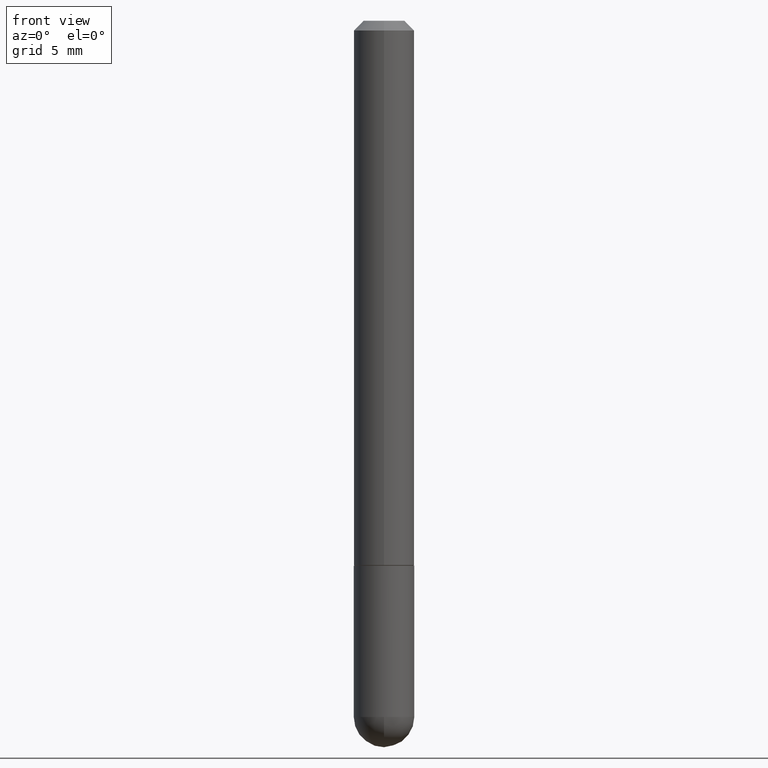
[diagram: clean part render]
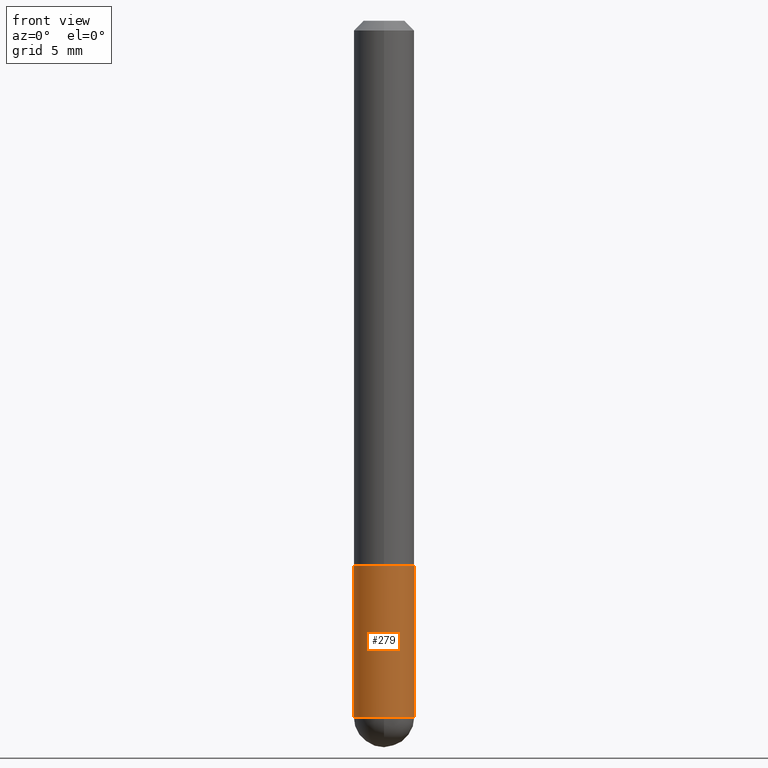
[diagram: same view with one face highlighted and labeled with its STEP entity id]
A machine part, front view. The second image highlights one B-rep face of the part: STEP entity #279.
In plain terms, the highlighted cylindrical surface (edge-blend (fillet) strip) has radius 1.5875 mm, axis along (-0, 0, 1).
Its self-contained STEP definition (entity closure, byte-faithful):
#8 = FACE_OUTER_BOUND ( 'NONE', #245, .T. ) ;
#11 = CARTESIAN_POINT ( 'NONE',  ( 2.751152406958278111E-29, -3.927916506198538435E-15, -1.124999999999999778 ) ) ;
#12 = VERTEX_POINT ( 'NONE', #412 ) ;
#21 = DIRECTION ( 'NONE',  ( -2.445468806185136597E-29, 3.491481338843145583E-15, 1.000000000000000000 ) ) ;
#24 = ORIENTED_EDGE ( 'NONE', *, *, #388, .T. ) ;
#43 = ORIENTED_EDGE ( 'NONE', *, *, #328, .T. ) ;
#56 = CIRCLE ( 'NONE', #317, 0.06249999999999995143 ) ;
#75 = LINE ( 'NONE', #172, #369 ) ;
#99 = CARTESIAN_POINT ( 'NONE',  ( 0.06250000000000001388, -4.364351673553930105E-15, -1.124999999999999778 ) ) ;
#104 = DIRECTION ( 'NONE',  ( 1.000000000000000000, -6.982962677686267499E-15, 4.876176775795936353E-29 ) ) ;
#109 = DIRECTION ( 'NONE',  ( 1.000000000000000000, -6.982962677686268288E-15, 0.000000000000000000 ) ) ;
#137 = DIRECTION ( 'NONE',  ( -2.445468806185136597E-29, 3.491481338843145583E-15, 1.000000000000000000 ) ) ;
#141 = EDGE_CURVE ( 'NONE', #202, #300, #257, .T. ) ;
#160 = CIRCLE ( 'NONE', #256, 0.06249999999999995143 ) ;
#161 = DIRECTION ( 'NONE',  ( -2.445468806185136877E-29, 3.491481338843145188E-15, 1.000000000000000000 ) ) ;
#162 = CARTESIAN_POINT ( 'NONE',  ( -0.06249999999999995143, -4.029371255542718167E-15, -1.437500000000000222 ) ) ;
#172 = CARTESIAN_POINT ( 'NONE',  ( 0.06249999999999997918, -4.364351673553915708E-16, 3.047610484872459170E-30 ) ) ;
#175 = ORIENTED_EDGE ( 'NONE', *, *, #141, .F. ) ;
#195 = CYLINDRICAL_SURFACE ( 'NONE', #290, 0.06249999999999997918 ) ;
#196 = VERTEX_POINT ( 'NONE', #99 ) ;
#202 = VERTEX_POINT ( 'NONE', #162 ) ;
#214 = VECTOR ( 'NONE', #161, 39.37007874015748143 ) ;
#220 = ORIENTED_EDGE ( 'NONE', *, *, #351, .F. ) ;
#243 = DIRECTION ( 'NONE',  ( 1.000000000000000000, -6.982962677686269077E-15, 0.000000000000000000 ) ) ;
#245 = EDGE_LOOP ( 'NONE', ( #175, #43, #24, #403, #220 ) ) ;
#256 = AXIS2_PLACEMENT_3D ( 'NONE', #326, #21, #358 ) ;
#257 = LINE ( 'NONE', #288, #214 ) ;
#262 = DIRECTION ( 'NONE',  ( -2.445468806185136877E-29, 3.491481338843145188E-15, 1.000000000000000000 ) ) ;
#263 = VERTEX_POINT ( 'NONE', #318 ) ;
#279 = ADVANCED_FACE ( 'NONE', ( #8 ), #195, .T. ) ;
#286 = AXIS2_PLACEMENT_3D ( 'NONE', #11, #393, #243 ) ;
#288 = CARTESIAN_POINT ( 'NONE',  ( -0.06249999999999997918, 4.440892098500624683E-16, -3.074334431409315413E-30 ) ) ;
#290 = AXIS2_PLACEMENT_3D ( 'NONE', #385, #137, #104 ) ;
#300 = VERTEX_POINT ( 'NONE', #396 ) ;
#315 = EDGE_CURVE ( 'NONE', #263, #196, #75, .T. ) ;
#317 = AXIS2_PLACEMENT_3D ( 'NONE', #355, #363, #109 ) ;
#318 = CARTESIAN_POINT ( 'NONE',  ( 0.06249999999999995143, -4.909895632748172453E-15, -1.437500000000000222 ) ) ;
#326 = CARTESIAN_POINT ( 'NONE',  ( 3.515361408891134418E-29, -5.019004424587023131E-15, -1.437500000000000222 ) ) ;
#328 = EDGE_CURVE ( 'NONE', #202, #12, #56, .T. ) ;
#351 = EDGE_CURVE ( 'NONE', #300, #196, #378, .T. ) ;
#355 = CARTESIAN_POINT ( 'NONE',  ( 3.515361408891134418E-29, -5.019004424587023131E-15, -1.437500000000000222 ) ) ;
#358 = DIRECTION ( 'NONE',  ( 1.000000000000000000, -6.982962677686268288E-15, 0.000000000000000000 ) ) ;
#363 = DIRECTION ( 'NONE',  ( -2.445468806185136597E-29, 3.491481338843145583E-15, 1.000000000000000000 ) ) ;
#369 = VECTOR ( 'NONE', #262, 39.37007874015748143 ) ;
#378 = CIRCLE ( 'NONE', #286, 0.06250000000000001388 ) ;
#385 = CARTESIAN_POINT ( 'NONE',  ( 0.000000000000000000, 0.000000000000000000, 0.000000000000000000 ) ) ;
#388 = EDGE_CURVE ( 'NONE', #12, #263, #160, .T. ) ;
#393 = DIRECTION ( 'NONE',  ( -2.445468806185136597E-29, 3.491481338843145583E-15, 1.000000000000000000 ) ) ;
#396 = CARTESIAN_POINT ( 'NONE',  ( -0.06250000000000001388, -4.029371255542718167E-15, -1.124999999999999778 ) ) ;
#403 = ORIENTED_EDGE ( 'NONE', *, *, #315, .T. ) ;
#412 = CARTESIAN_POINT ( 'NONE',  ( -4.440892098500294840E-16, -0.06250000000000532907, -1.437500000000000000 ) ) ;